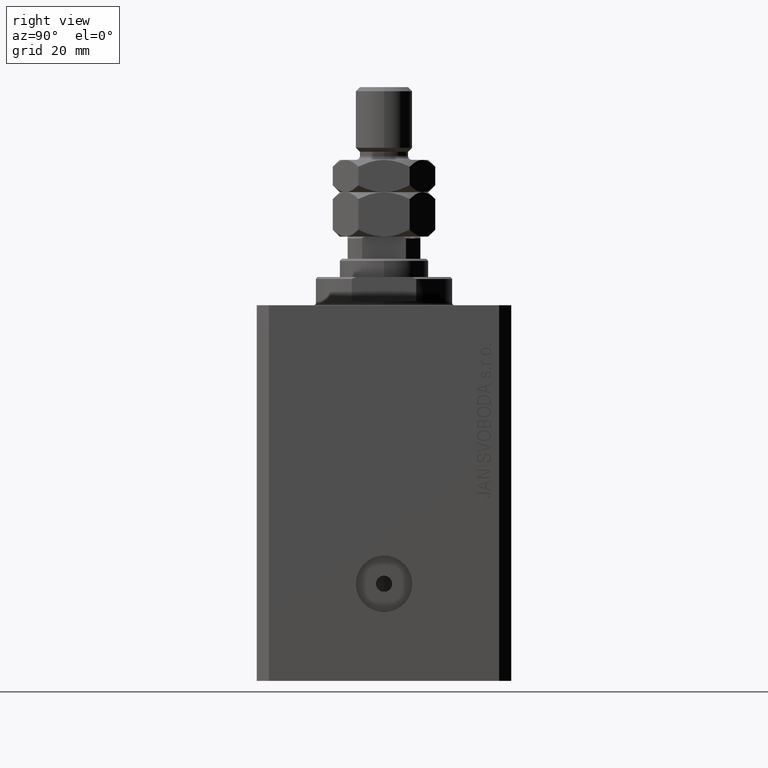
[diagram: clean part render]
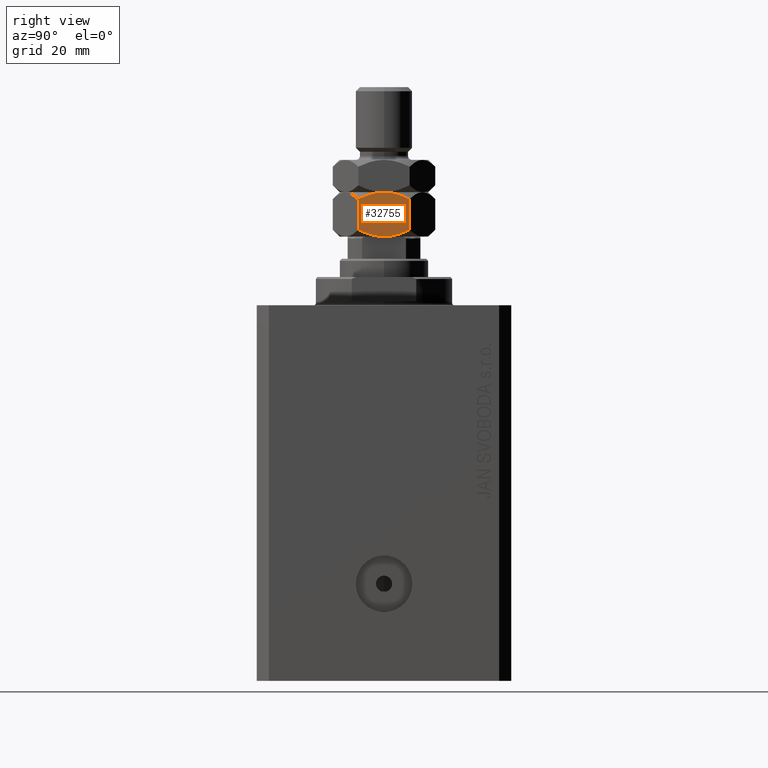
[diagram: same view with one face highlighted and labeled with its STEP entity id]
A machine part, right view. The second image highlights one B-rep face of the part: STEP entity #32755.
In plain terms, the highlighted planar face has unit normal (-1, 0, 0).
Its self-contained STEP definition (entity closure, byte-faithful):
#280 = B_SPLINE_CURVE_WITH_KNOTS ( 'NONE', 3,
 ( #11221, #32626, #44024, #18208, #33320, #7489, #25639, #36120 ),
 .UNSPECIFIED., .F., .F.,
 ( 4, 2, 2, 4 ),
 ( 0.02548310755563731184, 0.02714502201312677179, 0.02880693647061623175, 0.03213076538559515166 ),
 .UNSPECIFIED. ) ;
#2046 = PLANE ( 'NONE',  #4545 ) ;
#2780 = CARTESIAN_POINT ( 'NONE',  ( 11.00000000000000000, -3.802713407336412832, 10.37230892346509847 ) ) ;
#3166 = ORIENTED_EDGE ( 'NONE', *, *, #11276, .F. ) ;
#3264 = ORIENTED_EDGE ( 'NONE', *, *, #32073, .F. ) ;
#3404 = CARTESIAN_POINT ( 'NONE',  ( 10.99999999999999822, 4.323029509133802684, 0.8096537352537666044 ) ) ;
#4545 = AXIS2_PLACEMENT_3D ( 'NONE', #20214, #30910, #44874 ) ;
#5834 = CARTESIAN_POINT ( 'NONE',  ( 10.99999999999999467, 0.000000000000000000, 11.00000000000000000 ) ) ;
#6289 = CARTESIAN_POINT ( 'NONE',  ( 11.00000000000000000, -1.102880524211969027, 10.94828572630293273 ) ) ;
#7489 = CARTESIAN_POINT ( 'NONE',  ( 11.00000000000000178, -4.344649988696088094, 0.7819333922108973045 ) ) ;
#8323 = CARTESIAN_POINT ( 'NONE',  ( 11.00000000000000178, 0.5516605423237666006, 11.00000000000000355 ) ) ;
#8564 = DIRECTION ( 'NONE',  ( -0.000000000000000000, -0.000000000000000000, -1.000000000000000000 ) ) ;
#8703 = CARTESIAN_POINT ( 'NONE',  ( 11.00000000000000000, -6.350852961085885262, 1.701705922171761864 ) ) ;
#9213 = B_SPLINE_CURVE_WITH_KNOTS ( 'NONE', 3,
 ( #27877, #42059, #30904, #3404, #10175, #24366, #38561, #31596, #45086, #28097, #28330, #38800 ),
 .UNSPECIFIED., .F., .F.,
 ( 4, 2, 2, 2, 2, 4 ),
 ( 0.01886453216956117396, 0.02051917601608021016, 0.02217381986259924290, 0.02382846370911827910, 0.02465578563237779547, 0.02548310755563731184 ),
 .UNSPECIFIED. ) ;
#10175 = CARTESIAN_POINT ( 'NONE',  ( 11.00000000000000000, 3.802713407336413276, 0.6276910765349043020 ) ) ;
#11221 = CARTESIAN_POINT ( 'NONE',  ( 11.00000000000000000, 0.000000000000000000, 0.000000000000000000 ) ) ;
#11276 = EDGE_CURVE ( 'NONE', #35703, #35632, #24563, .T. ) ;
#12455 = ORIENTED_EDGE ( 'NONE', *, *, #31646, .F. ) ;
#13070 = VERTEX_POINT ( 'NONE', #22970 ) ;
#13322 = CARTESIAN_POINT ( 'NONE',  ( 11.00000000000000000, 6.350852961085883486, 11.00000000000000000 ) ) ;
#16423 = ORIENTED_EDGE ( 'NONE', *, *, #17567, .T. ) ;
#17567 = EDGE_CURVE ( 'NONE', #35703, #33423, #41355, .T. ) ;
#18208 = CARTESIAN_POINT ( 'NONE',  ( 10.99999999999999645, -2.189438957741031366, 0.2028253662507153998 ) ) ;
#20177 = CARTESIAN_POINT ( 'NONE',  ( 11.00000000000000000, 6.350852961085883486, 9.298294077828240134 ) ) ;
#20214 = CARTESIAN_POINT ( 'NONE',  ( 11.00000000000000000, -6.350852961085885262, 11.00000000000000000 ) ) ;
#21068 = CARTESIAN_POINT ( 'NONE',  ( 10.99999999999999467, 0.000000000000000000, 11.00000000000000000 ) ) ;
#22114 = CARTESIAN_POINT ( 'NONE',  ( 11.00000000000000000, 0.000000000000000000, 0.000000000000000000 ) ) ;
#22851 = VECTOR ( 'NONE', #8564, 1000.000000000000000 ) ;
#22970 = CARTESIAN_POINT ( 'NONE',  ( 11.00000000000000000, 6.350852961085883486, 9.298294077828240134 ) ) ;
#23309 = CARTESIAN_POINT ( 'NONE',  ( 11.00000000000000000, -0.2746235576716405391, 11.00000000000000355 ) ) ;
#23529 = CARTESIAN_POINT ( 'NONE',  ( 11.00000000000000178, -0.5501206218979368678, 10.98970138300551191 ) ) ;
#23989 = CARTESIAN_POINT ( 'NONE',  ( 11.00000000000000355, -2.743986917173864892, 10.67427553246086447 ) ) ;
#24366 = CARTESIAN_POINT ( 'NONE',  ( 11.00000000000000000, 2.743986917173864448, 0.3257244675391384736 ) ) ;
#24563 = B_SPLINE_CURVE_WITH_KNOTS ( 'NONE', 3,
 ( #27474, #27939, #41665, #45371, #2780, #23989, #38177, #42121, #6289, #23529, #23309, #5834 ),
 .UNSPECIFIED., .F., .F.,
 ( 4, 2, 2, 2, 2, 4 ),
 ( 0.01886453216956117396, 0.02051917601608021016, 0.02217381986259924637, 0.02382846370911827910, 0.02465578563237779547, 0.02548310755563731531 ),
 .UNSPECIFIED. ) ;
#25639 = CARTESIAN_POINT ( 'NONE',  ( 11.00000000000000000, -5.363576505757326807, 1.208067694507484413 ) ) ;
#26903 = EDGE_CURVE ( 'NONE', #13070, #33086, #34281, .T. ) ;
#27160 = CARTESIAN_POINT ( 'NONE',  ( 11.00000000000000178, 1.099784029505284533, 10.95829822225798189 ) ) ;
#27180 = EDGE_LOOP ( 'NONE', ( #3264, #38190, #35997, #3166, #16423, #12455 ) ) ;
#27474 = CARTESIAN_POINT ( 'NONE',  ( 11.00000000000000000, -6.350852961085885262, 9.298294077828238358 ) ) ;
#27877 = CARTESIAN_POINT ( 'NONE',  ( 11.00000000000000000, 6.350852961085883486, 1.701705922171761198 ) ) ;
#27939 = CARTESIAN_POINT ( 'NONE',  ( 10.99999999999999822, -5.856287164594791150, 9.545576976073807174 ) ) ;
#28097 = CARTESIAN_POINT ( 'NONE',  ( 10.99999999999999822, 0.5501206218979356466, 0.01029861699449337656 ) ) ;
#28330 = CARTESIAN_POINT ( 'NONE',  ( 10.99999999999999822, 0.2746235576716393179, 8.470329472542994146E-18 ) ) ;
#28484 = VERTEX_POINT ( 'NONE', #22114 ) ;
#29723 = CARTESIAN_POINT ( 'NONE',  ( 11.00000000000000000, 6.350852961085883486, 1.701705922171761198 ) ) ;
#30684 = FACE_OUTER_BOUND ( 'NONE', #27180, .T. ) ;
#30875 = CARTESIAN_POINT ( 'NONE',  ( 10.99999999999999822, 5.363576505757325918, 9.791932305492514033 ) ) ;
#30904 = CARTESIAN_POINT ( 'NONE',  ( 11.00000000000000000, 5.349315167928744508, 1.222704691498689877 ) ) ;
#30910 = DIRECTION ( 'NONE',  ( -1.000000000000000000, 0.000000000000000000, 0.000000000000000000 ) ) ;
#31335 = CARTESIAN_POINT ( 'NONE',  ( 11.00000000000000178, 4.344649988696087206, 10.21806660778910114 ) ) ;
#31596 = CARTESIAN_POINT ( 'NONE',  ( 11.00000000000000178, 1.381217716854154398, 0.08304699151390024237 ) ) ;
#31646 = EDGE_CURVE ( 'NONE', #28484, #33423, #280, .T. ) ;
#32073 = EDGE_CURVE ( 'NONE', #33086, #28484, #9213, .T. ) ;
#32626 = CARTESIAN_POINT ( 'NONE',  ( 10.99999999999999822, -0.5516605423237674888, 3.811648262644349985E-18 ) ) ;
#32755 = ADVANCED_FACE ( 'NONE', ( #30684 ), #2046, .F. ) ;
#33086 = VERTEX_POINT ( 'NONE', #29723 ) ;
#33320 = CARTESIAN_POINT ( 'NONE',  ( 11.00000000000000000, -2.731989201781026111, 0.3224669455115847794 ) ) ;
#33423 = VERTEX_POINT ( 'NONE', #8703 ) ;
#34281 = LINE ( 'NONE', #13322, #43027 ) ;
#35632 = VERTEX_POINT ( 'NONE', #21068 ) ;
#35703 = VERTEX_POINT ( 'NONE', #42933 ) ;
#35997 = ORIENTED_EDGE ( 'NONE', *, *, #36542, .F. ) ;
#36120 = CARTESIAN_POINT ( 'NONE',  ( 11.00000000000000000, -6.350852961085885262, 1.701705922171761864 ) ) ;
#36542 = EDGE_CURVE ( 'NONE', #35632, #13070, #39176, .T. ) ;
#38177 = CARTESIAN_POINT ( 'NONE',  ( 10.99999999999999822, -2.205563362884370271, 10.79423439979603039 ) ) ;
#38190 = ORIENTED_EDGE ( 'NONE', *, *, #26903, .F. ) ;
#38561 = CARTESIAN_POINT ( 'NONE',  ( 11.00000000000000000, 2.205563362884370715, 0.2057656002039678633 ) ) ;
#38769 = CARTESIAN_POINT ( 'NONE',  ( 10.99999999999999822, 2.189438957741029590, 10.79717463374928421 ) ) ;
#38800 = CARTESIAN_POINT ( 'NONE',  ( 11.00000000000000000, 0.000000000000000000, 0.000000000000000000 ) ) ;
#39176 = B_SPLINE_CURVE_WITH_KNOTS ( 'NONE', 3,
 ( #40218, #8323, #27160, #38769, #45512, #31335, #30875, #20177 ),
 .UNSPECIFIED., .F., .F.,
 ( 4, 2, 2, 4 ),
 ( 0.02548310755563731531, 0.02714502201312677526, 0.02880693647061623522, 0.03213076538559515860 ),
 .UNSPECIFIED. ) ;
#40218 = CARTESIAN_POINT ( 'NONE',  ( 10.99999999999999467, 0.000000000000000000, 11.00000000000000000 ) ) ;
#41355 = LINE ( 'NONE', #44399, #22851 ) ;
#41665 = CARTESIAN_POINT ( 'NONE',  ( 11.00000000000000178, -5.349315167928747172, 9.777295308501312121 ) ) ;
#41706 = DIRECTION ( 'NONE',  ( -0.000000000000000000, -0.000000000000000000, -1.000000000000000000 ) ) ;
#42059 = CARTESIAN_POINT ( 'NONE',  ( 11.00000000000000178, 5.856287164594785821, 1.454423023926191938 ) ) ;
#42121 = CARTESIAN_POINT ( 'NONE',  ( 11.00000000000000178, -1.381217716854154398, 10.91695300848610017 ) ) ;
#42933 = CARTESIAN_POINT ( 'NONE',  ( 11.00000000000000000, -6.350852961085885262, 9.298294077828238358 ) ) ;
#43027 = VECTOR ( 'NONE', #41706, 1000.000000000000000 ) ;
#44024 = CARTESIAN_POINT ( 'NONE',  ( 11.00000000000000178, -1.099784029505286975, 0.04170177774201815762 ) ) ;
#44399 = CARTESIAN_POINT ( 'NONE',  ( 11.00000000000000000, -6.350852961085885262, 11.00000000000000000 ) ) ;
#44874 = DIRECTION ( 'NONE',  ( 0.000000000000000000, 0.000000000000000000, 1.000000000000000000 ) ) ;
#45086 = CARTESIAN_POINT ( 'NONE',  ( 11.00000000000000000, 1.102880524211967916, 0.05171427369706949051 ) ) ;
#45371 = CARTESIAN_POINT ( 'NONE',  ( 10.99999999999999822, -4.323029509133800907, 10.19034626474623551 ) ) ;
#45512 = CARTESIAN_POINT ( 'NONE',  ( 11.00000000000000000, 2.731989201781026555, 10.67753305448841772 ) ) ;